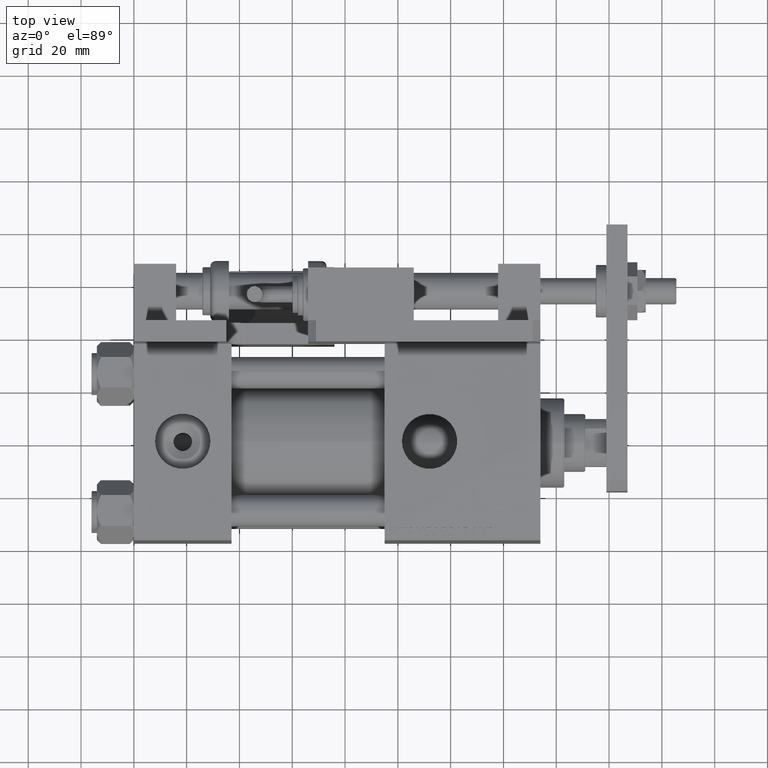
[diagram: clean part render]
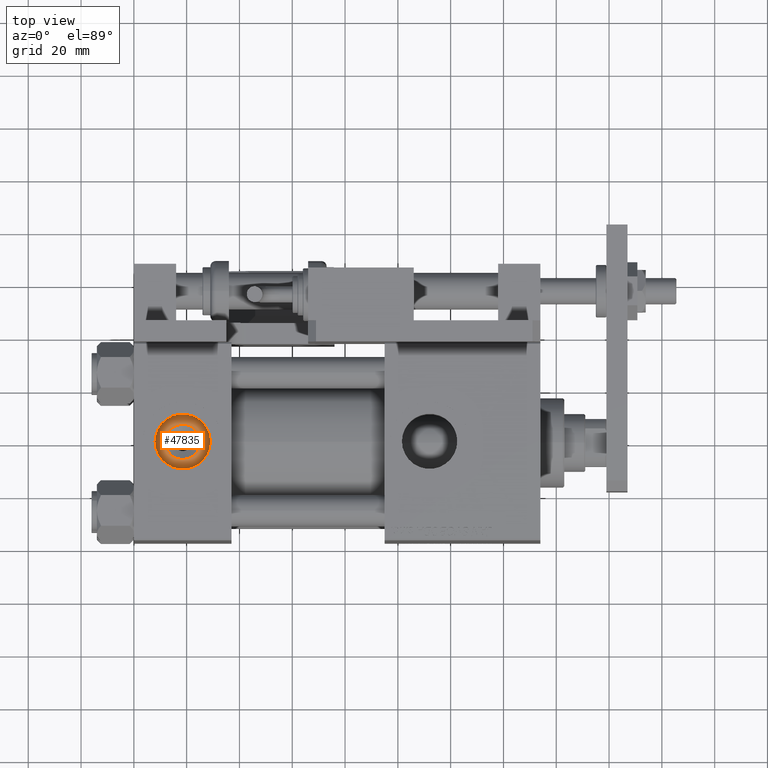
[diagram: same view with one face highlighted and labeled with its STEP entity id]
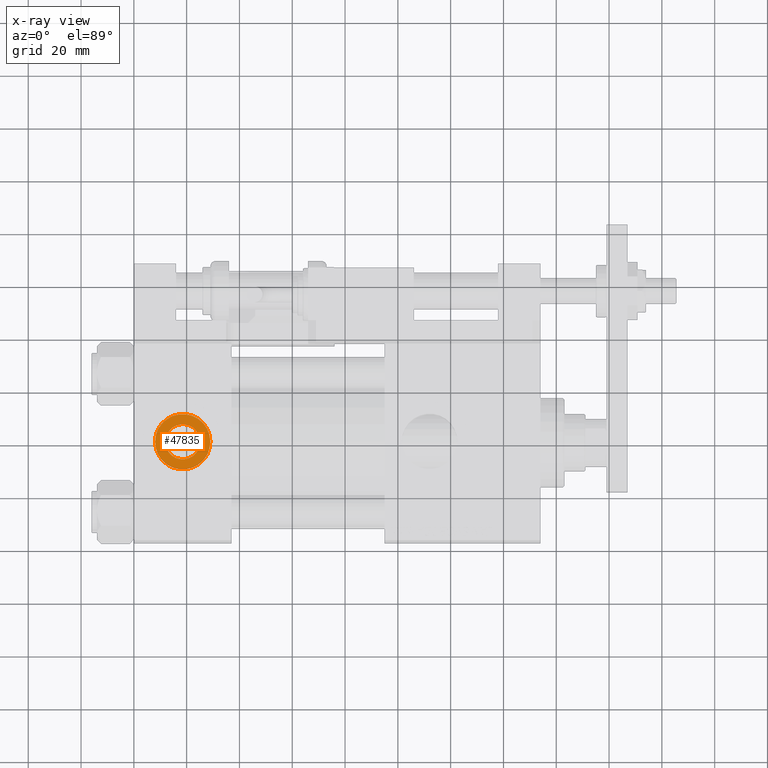
[diagram: x-ray of the same camera — body ghosted, the highlighted face saturated]
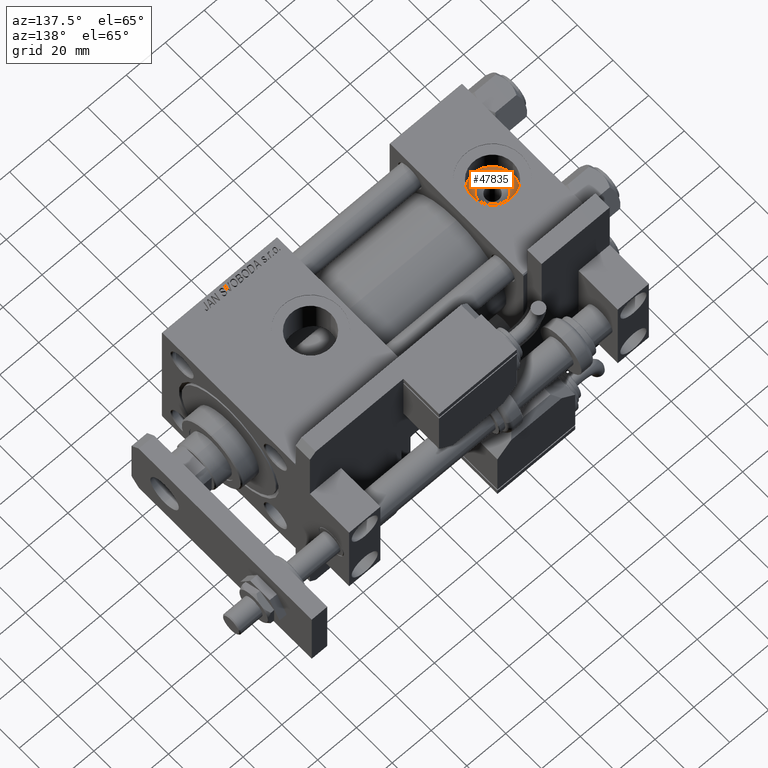
[diagram: same view with one face highlighted and labeled with its STEP entity id]
A machine part, top view. The second image highlights one B-rep face of the part: STEP entity #47835.
The next image is the same camera in x-ray: the body ghosted, the highlighted face saturated — about 0% of this face is hidden behind the body in this view.
A second angle (auxiliary view) of the same face is appended — the face is thin or edge-on in the first view.
In plain terms, the highlighted planar face has unit normal (0, 0, 1).
Its self-contained STEP definition (entity closure, byte-faithful):
#629 = CIRCLE ( 'NONE', #7004, 6.639999999999986358 ) ;
#3342 = EDGE_CURVE ( 'NONE', #15321, #50992, #629, .T. ) ;
#4643 = DIRECTION ( 'NONE',  ( 1.000000000000000000, 0.000000000000000000, 0.000000000000000000 ) ) ;
#7004 = AXIS2_PLACEMENT_3D ( 'NONE', #20966, #11917, #20688 ) ;
#7923 = AXIS2_PLACEMENT_3D ( 'NONE', #10983, #20048, #28262 ) ;
#8437 = CARTESIAN_POINT ( 'NONE',  ( 11.86000000000001364, -4.391004953296580751E-15, 26.69999999999999929 ) ) ;
#8560 = AXIS2_PLACEMENT_3D ( 'NONE', #36581, #44202, #49273 ) ;
#10512 = ORIENTED_EDGE ( 'NONE', *, *, #53882, .T. ) ;
#10983 = CARTESIAN_POINT ( 'NONE',  ( 18.50000000000000000, -5.204170427930421283E-15, 26.69999999999999929 ) ) ;
#11917 = DIRECTION ( 'NONE',  ( -0.000000000000000000, -0.000000000000000000, -1.000000000000000000 ) ) ;
#14230 = EDGE_LOOP ( 'NONE', ( #28150, #33979 ) ) ;
#14306 = CIRCLE ( 'NONE', #53135, 10.48000000000000043 ) ;
#14666 = FACE_BOUND ( 'NONE', #14230, .T. ) ;
#15321 = VERTEX_POINT ( 'NONE', #8437 ) ;
#17057 = CARTESIAN_POINT ( 'NONE',  ( 8.019999999999999574, -3.920740582423995006E-15, 26.69999999999999929 ) ) ;
#17643 = CIRCLE ( 'NONE', #51063, 10.48000000000000043 ) ;
#19225 = CARTESIAN_POINT ( 'NONE',  ( 18.50000000000000000, -5.204170427930421283E-15, 26.69999999999999929 ) ) ;
#20048 = DIRECTION ( 'NONE',  ( 0.000000000000000000, 0.000000000000000000, 1.000000000000000000 ) ) ;
#20688 = DIRECTION ( 'NONE',  ( 1.000000000000000000, 0.000000000000000000, 0.000000000000000000 ) ) ;
#20966 = CARTESIAN_POINT ( 'NONE',  ( 18.50000000000000000, -5.204170427930421283E-15, 26.69999999999999929 ) ) ;
#24322 = DIRECTION ( 'NONE',  ( 1.000000000000000000, 0.000000000000000000, 0.000000000000000000 ) ) ;
#25331 = CARTESIAN_POINT ( 'NONE',  ( 25.13999999999998636, -5.204170427930421283E-15, 26.69999999999999929 ) ) ;
#28150 = ORIENTED_EDGE ( 'NONE', *, *, #38832, .T. ) ;
#28262 = DIRECTION ( 'NONE',  ( 1.000000000000000000, 0.000000000000000000, -0.000000000000000000 ) ) ;
#28825 = PLANE ( 'NONE',  #7923 ) ;
#29853 = DIRECTION ( 'NONE',  ( 0.000000000000000000, 0.000000000000000000, 1.000000000000000000 ) ) ;
#32954 = CIRCLE ( 'NONE', #8560, 6.639999999999986358 ) ;
#33979 = ORIENTED_EDGE ( 'NONE', *, *, #3342, .T. ) ;
#36581 = CARTESIAN_POINT ( 'NONE',  ( 18.50000000000000000, -5.204170427930421283E-15, 26.69999999999999929 ) ) ;
#38832 = EDGE_CURVE ( 'NONE', #50992, #15321, #32954, .T. ) ;
#39926 = CARTESIAN_POINT ( 'NONE',  ( 28.98000000000000043, -5.204170427930421283E-15, 26.69999999999999929 ) ) ;
#40982 = DIRECTION ( 'NONE',  ( 0.000000000000000000, 0.000000000000000000, 1.000000000000000000 ) ) ;
#43990 = EDGE_CURVE ( 'NONE', #55063, #55167, #17643, .T. ) ;
#44202 = DIRECTION ( 'NONE',  ( -0.000000000000000000, -0.000000000000000000, -1.000000000000000000 ) ) ;
#46511 = CARTESIAN_POINT ( 'NONE',  ( 18.50000000000000000, -5.204170427930421283E-15, 26.69999999999999929 ) ) ;
#46740 = EDGE_LOOP ( 'NONE', ( #10512, #52285 ) ) ;
#47835 = ADVANCED_FACE ( 'NONE', ( #14666, #54508 ), #28825, .T. ) ;
#49273 = DIRECTION ( 'NONE',  ( 1.000000000000000000, 0.000000000000000000, 0.000000000000000000 ) ) ;
#50992 = VERTEX_POINT ( 'NONE', #25331 ) ;
#51063 = AXIS2_PLACEMENT_3D ( 'NONE', #19225, #40982, #24322 ) ;
#52285 = ORIENTED_EDGE ( 'NONE', *, *, #43990, .T. ) ;
#53135 = AXIS2_PLACEMENT_3D ( 'NONE', #46511, #29853, #4643 ) ;
#53882 = EDGE_CURVE ( 'NONE', #55167, #55063, #14306, .T. ) ;
#54508 = FACE_OUTER_BOUND ( 'NONE', #46740, .T. ) ;
#55063 = VERTEX_POINT ( 'NONE', #17057 ) ;
#55167 = VERTEX_POINT ( 'NONE', #39926 ) ;